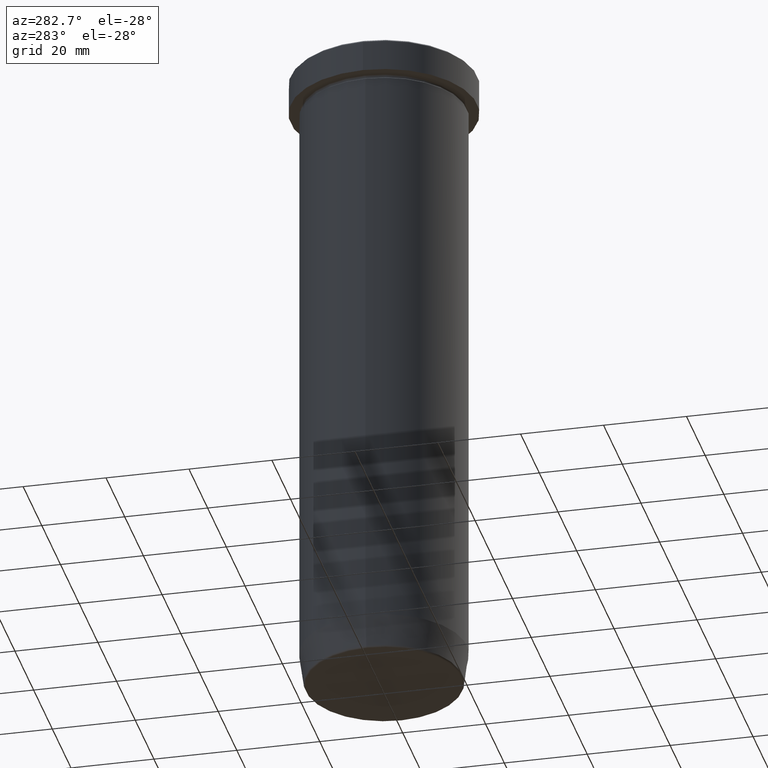
[diagram: clean part render]
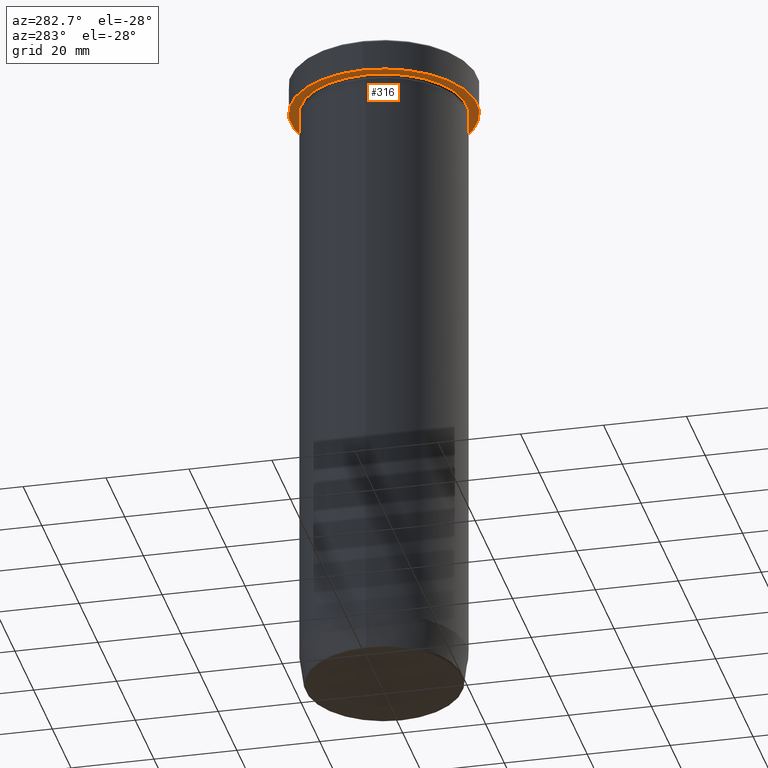
[diagram: same view with one face highlighted and labeled with its STEP entity id]
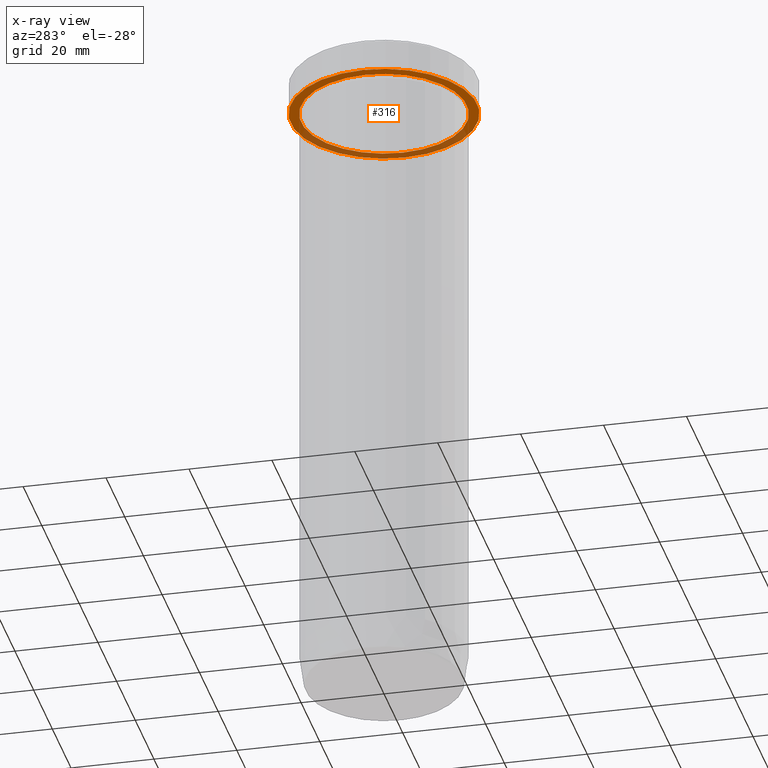
[diagram: x-ray of the same camera — body ghosted, the highlighted face saturated]
A machine part, auxiliary view. The second image highlights one B-rep face of the part: STEP entity #316.
The next image is the same camera in x-ray: the body ghosted, the highlighted face saturated — about 36% of this face is hidden behind the body in this view.
In plain terms, the highlighted planar face has unit normal (0, 0, -1).
Its self-contained STEP definition (entity closure, byte-faithful):
#3 = FACE_OUTER_BOUND ( 'NONE', #355, .T. ) ;
#18 = CARTESIAN_POINT ( 'NONE',  ( 0.000000000000000000, 0.000000000000000000, -7.999999999999998224 ) ) ;
#36 = ORIENTED_EDGE ( 'NONE', *, *, #141, .T. ) ;
#45 = PLANE ( 'NONE',  #243 ) ;
#63 = DIRECTION ( 'NONE',  ( -0.000000000000000000, -0.000000000000000000, 1.000000000000000000 ) ) ;
#121 = CARTESIAN_POINT ( 'NONE',  ( 22.50000000000000000, 0.000000000000000000, -7.999999999999998224 ) ) ;
#141 = EDGE_CURVE ( 'NONE', #259, #304, #509, .T. ) ;
#146 = DIRECTION ( 'NONE',  ( -0.000000000000000000, -0.000000000000000000, 1.000000000000000000 ) ) ;
#159 = ORIENTED_EDGE ( 'NONE', *, *, #352, .F. ) ;
#187 = CARTESIAN_POINT ( 'NONE',  ( 0.000000000000000000, 22.50000000000000000, -7.999999999999998224 ) ) ;
#189 = AXIS2_PLACEMENT_3D ( 'NONE', #516, #508, #412 ) ;
#190 = CARTESIAN_POINT ( 'NONE',  ( -22.50000000000000000, 2.755455298081544778E-15, -7.999999999999998224 ) ) ;
#198 = DIRECTION ( 'NONE',  ( 1.000000000000000000, 0.000000000000000000, 0.000000000000000000 ) ) ;
#199 = CARTESIAN_POINT ( 'NONE',  ( 0.000000000000000000, 0.000000000000000000, -7.999999999999998224 ) ) ;
#210 = DIRECTION ( 'NONE',  ( -0.000000000000000000, -0.000000000000000000, 1.000000000000000000 ) ) ;
#230 = DIRECTION ( 'NONE',  ( 0.000000000000000000, 0.000000000000000000, -1.000000000000000000 ) ) ;
#235 = CIRCLE ( 'NONE', #510, 22.50000000000000000 ) ;
#239 = FACE_BOUND ( 'NONE', #461, .T. ) ;
#243 = AXIS2_PLACEMENT_3D ( 'NONE', #187, #230, #342 ) ;
#259 = VERTEX_POINT ( 'NONE', #427 ) ;
#284 = DIRECTION ( 'NONE',  ( 1.000000000000000000, 0.000000000000000000, 0.000000000000000000 ) ) ;
#288 = CARTESIAN_POINT ( 'NONE',  ( 20.00000000000000000, 2.449293598294706513E-15, -7.999999999999998224 ) ) ;
#302 = EDGE_CURVE ( 'NONE', #413, #524, #235, .T. ) ;
#304 = VERTEX_POINT ( 'NONE', #288 ) ;
#308 = ORIENTED_EDGE ( 'NONE', *, *, #302, .F. ) ;
#316 = ADVANCED_FACE ( 'NONE', ( #239, #3 ), #45, .T. ) ;
#317 = CIRCLE ( 'NONE', #467, 22.50000000000000000 ) ;
#342 = DIRECTION ( 'NONE',  ( -1.000000000000000000, 0.000000000000000000, -0.000000000000000000 ) ) ;
#352 = EDGE_CURVE ( 'NONE', #524, #413, #317, .T. ) ;
#355 = EDGE_LOOP ( 'NONE', ( #159, #308 ) ) ;
#412 = DIRECTION ( 'NONE',  ( -1.000000000000000000, 0.000000000000000000, 0.000000000000000000 ) ) ;
#413 = VERTEX_POINT ( 'NONE', #190 ) ;
#427 = CARTESIAN_POINT ( 'NONE',  ( -20.00000000000000000, 0.000000000000000000, -7.999999999999998224 ) ) ;
#444 = DIRECTION ( 'NONE',  ( -1.000000000000000000, 0.000000000000000000, 0.000000000000000000 ) ) ;
#461 = EDGE_LOOP ( 'NONE', ( #36, #573 ) ) ;
#467 = AXIS2_PLACEMENT_3D ( 'NONE', #18, #210, #198 ) ;
#479 = EDGE_CURVE ( 'NONE', #304, #259, #591, .T. ) ;
#508 = DIRECTION ( 'NONE',  ( -0.000000000000000000, -0.000000000000000000, 1.000000000000000000 ) ) ;
#509 = CIRCLE ( 'NONE', #583, 20.00000000000000000 ) ;
#510 = AXIS2_PLACEMENT_3D ( 'NONE', #514, #146, #284 ) ;
#514 = CARTESIAN_POINT ( 'NONE',  ( 0.000000000000000000, 0.000000000000000000, -7.999999999999998224 ) ) ;
#516 = CARTESIAN_POINT ( 'NONE',  ( 0.000000000000000000, 0.000000000000000000, -7.999999999999998224 ) ) ;
#524 = VERTEX_POINT ( 'NONE', #121 ) ;
#573 = ORIENTED_EDGE ( 'NONE', *, *, #479, .T. ) ;
#583 = AXIS2_PLACEMENT_3D ( 'NONE', #199, #63, #444 ) ;
#591 = CIRCLE ( 'NONE', #189, 20.00000000000000000 ) ;